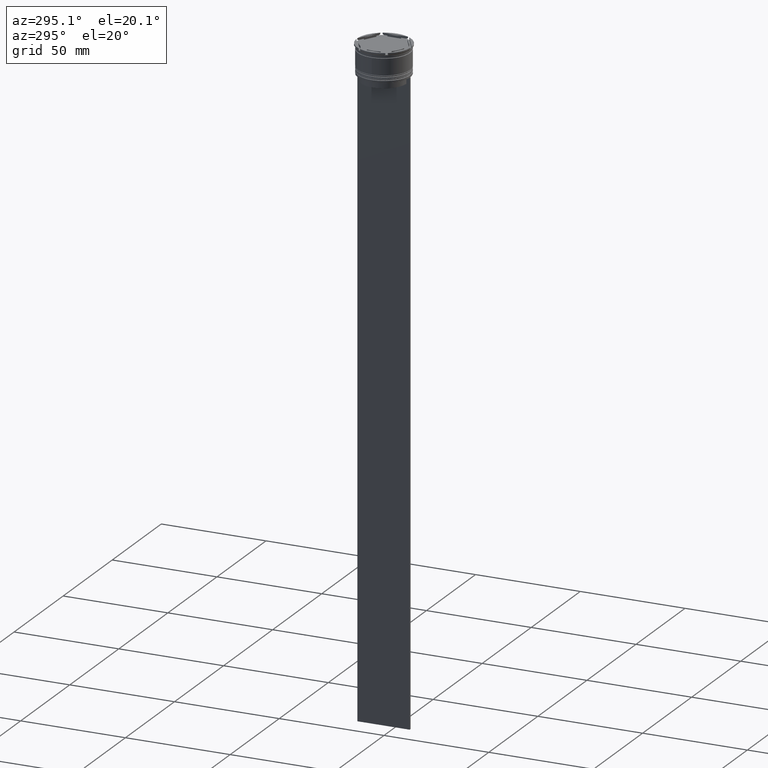
[diagram: clean part render]
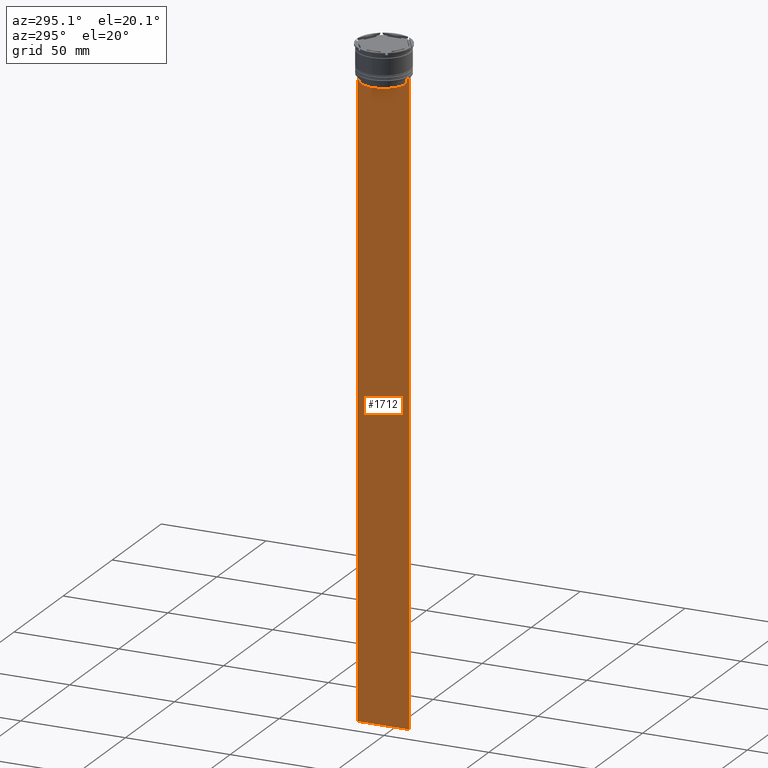
[diagram: same view with one face highlighted and labeled with its STEP entity id]
A machine part, auxiliary view. The second image highlights one B-rep face of the part: STEP entity #1712.
In plain terms, the highlighted planar face has unit normal (-1, 0, 0).
Its self-contained STEP definition (entity closure, byte-faithful):
#1 = CARTESIAN_POINT ( 'NONE',  ( -0.5000000000000000000, -11.22219891450652973, -14.16667035398018903 ) ) ;
#7 = EDGE_CURVE ( 'NONE', #1048, #511, #2451, .T. ) ;
#80 = EDGE_CURVE ( 'NONE', #1990, #1506, #217, .T. ) ;
#87 = ORIENTED_EDGE ( 'NONE', *, *, #2784, .F. ) ;
#91 = B_SPLINE_CURVE_WITH_KNOTS ( 'NONE', 3,
 ( #1746, #1997, #1, #894 ),
 .UNSPECIFIED., .F., .F.,
 ( 4, 4 ),
 ( 0.05041323384703226551, 0.05112713601261605068 ),
 .UNSPECIFIED. ) ;
#185 = DIRECTION ( 'NONE',  ( 0.000000000000000000, -1.000000000000000000, 0.000000000000000000 ) ) ;
#217 = LINE ( 'NONE', #1345, #2138 ) ;
#252 = VECTOR ( 'NONE', #260, 1000.000000000000000 ) ;
#260 = DIRECTION ( 'NONE',  ( 0.000000000000000000, 1.000000000000000000, 0.000000000000000000 ) ) ;
#314 = CARTESIAN_POINT ( 'NONE',  ( -0.5000000000000000000, 12.50000000000000711, -314.0000000000000000 ) ) ;
#345 = DIRECTION ( 'NONE',  ( 0.000000000000000000, -1.000000000000000000, 0.000000000000000000 ) ) ;
#366 = ORIENTED_EDGE ( 'NONE', *, *, #1860, .F. ) ;
#418 = CARTESIAN_POINT ( 'NONE',  ( -0.5000000000000000000, -12.49999999999999289, -314.0000000000000000 ) ) ;
#443 = CARTESIAN_POINT ( 'NONE',  ( -0.5000000000000000000, -12.49999999999999289, -14.00000000000000178 ) ) ;
#486 = VECTOR ( 'NONE', #1929, 1000.000000000000000 ) ;
#505 = LINE ( 'NONE', #2544, #1923 ) ;
#511 = VERTEX_POINT ( 'NONE', #2872 ) ;
#531 = EDGE_CURVE ( 'NONE', #1907, #2067, #2213, .T. ) ;
#541 = CARTESIAN_POINT ( 'NONE',  ( -0.5000000000000000000, -12.49999999999999289, -14.00000000000000178 ) ) ;
#542 = VECTOR ( 'NONE', #1589, 1000.000000000000000 ) ;
#638 = EDGE_CURVE ( 'NONE', #511, #1614, #91, .T. ) ;
#657 = CARTESIAN_POINT ( 'NONE',  ( -0.5000000000000000000, 10.88852607105296144, -17.00000000000000000 ) ) ;
#740 = DIRECTION ( 'NONE',  ( 0.000000000000000000, 0.000000000000000000, -1.000000000000000000 ) ) ;
#772 = CARTESIAN_POINT ( 'NONE',  ( -0.5000000000000000000, 11.38902980942626719, -14.00000000000000178 ) ) ;
#781 = CARTESIAN_POINT ( 'NONE',  ( -0.5000000000000000000, 10.88852607105296322, -14.50000000000000000 ) ) ;
#793 = DIRECTION ( 'NONE',  ( 0.000000000000000000, 0.000000000000000000, -1.000000000000000000 ) ) ;
#797 = EDGE_LOOP ( 'NONE', ( #366, #2456, #2115, #2085, #1291, #1593, #1527, #87, #2274, #2585, #1002, #2781 ) ) ;
#808 = VERTEX_POINT ( 'NONE', #657 ) ;
#812 = LINE ( 'NONE', #1678, #1263 ) ;
#824 = CARTESIAN_POINT ( 'NONE',  ( -0.5000000000000000000, 11.05536450345590538, -14.33333719074559376 ) ) ;
#871 = CARTESIAN_POINT ( 'NONE',  ( -0.5000000000000000000, -12.49999999999999289, -14.00000000000000178 ) ) ;
#894 = CARTESIAN_POINT ( 'NONE',  ( -0.5000000000000000000, -11.38902980942626719, -14.00000000000000178 ) ) ;
#899 = VECTOR ( 'NONE', #2736, 1000.000000000000000 ) ;
#961 = EDGE_CURVE ( 'NONE', #808, #1048, #1389, .T. ) ;
#974 = FACE_OUTER_BOUND ( 'NONE', #797, .T. ) ;
#976 = EDGE_CURVE ( 'NONE', #1506, #1358, #1848, .T. ) ;
#1002 = ORIENTED_EDGE ( 'NONE', *, *, #961, .F. ) ;
#1045 = CARTESIAN_POINT ( 'NONE',  ( -0.5000000000000000000, 12.50000000000000711, 11.01999200639360765 ) ) ;
#1048 = VERTEX_POINT ( 'NONE', #2343 ) ;
#1058 = LINE ( 'NONE', #2118, #2718 ) ;
#1104 = CARTESIAN_POINT ( 'NONE',  ( -0.5000000000000000000, -12.49999999999999289, -314.0000000000000000 ) ) ;
#1111 = CARTESIAN_POINT ( 'NONE',  ( -0.5000000000000000000, 12.50000000000000711, -14.00000000000000178 ) ) ;
#1156 = DIRECTION ( 'NONE',  ( -1.000000000000000000, 0.000000000000000000, 0.000000000000000000 ) ) ;
#1188 = CARTESIAN_POINT ( 'NONE',  ( -0.5000000000000000000, 10.90000000000000213, -17.00000000000000000 ) ) ;
#1250 = CARTESIAN_POINT ( 'NONE',  ( -0.5000000000000000000, -12.38991525394746773, -14.00000000000000178 ) ) ;
#1263 = VECTOR ( 'NONE', #345, 1000.000000000000000 ) ;
#1291 = ORIENTED_EDGE ( 'NONE', *, *, #2455, .F. ) ;
#1329 = LINE ( 'NONE', #1104, #252 ) ;
#1345 = CARTESIAN_POINT ( 'NONE',  ( -0.5000000000000000000, -12.49999999999999289, -14.00000000000000178 ) ) ;
#1358 = VERTEX_POINT ( 'NONE', #772 ) ;
#1389 = LINE ( 'NONE', #1188, #2243 ) ;
#1506 = VERTEX_POINT ( 'NONE', #2149 ) ;
#1527 = ORIENTED_EDGE ( 'NONE', *, *, #531, .F. ) ;
#1539 = AXIS2_PLACEMENT_3D ( 'NONE', #2511, #1156, #2488 ) ;
#1589 = DIRECTION ( 'NONE',  ( -0.000000000000000000, -0.000000000000000000, 1.000000000000000000 ) ) ;
#1593 = ORIENTED_EDGE ( 'NONE', *, *, #2645, .F. ) ;
#1614 = VERTEX_POINT ( 'NONE', #2443 ) ;
#1634 = VECTOR ( 'NONE', #185, 1000.000000000000000 ) ;
#1671 = VERTEX_POINT ( 'NONE', #2852 ) ;
#1678 = CARTESIAN_POINT ( 'NONE',  ( -0.5000000000000000000, -12.49999999999999289, -14.00000000000000178 ) ) ;
#1712 = ADVANCED_FACE ( 'NONE', ( #974 ), #2498, .T. ) ;
#1746 = CARTESIAN_POINT ( 'NONE',  ( -0.5000000000000000000, -10.88852607105296322, -14.50000000000000000 ) ) ;
#1813 = CARTESIAN_POINT ( 'NONE',  ( -0.5000000000000000000, -10.88852607105296322, 0.000000000000000000 ) ) ;
#1848 = LINE ( 'NONE', #541, #899 ) ;
#1860 = EDGE_CURVE ( 'NONE', #1358, #1671, #2311, .T. ) ;
#1874 = CARTESIAN_POINT ( 'NONE',  ( -0.5000000000000000000, 11.38902980942626719, -14.00000000000000178 ) ) ;
#1907 = VERTEX_POINT ( 'NONE', #1250 ) ;
#1923 = VECTOR ( 'NONE', #740, 1000.000000000000000 ) ;
#1929 = DIRECTION ( 'NONE',  ( 0.000000000000000000, 0.000000000000000000, -1.000000000000000000 ) ) ;
#1990 = VERTEX_POINT ( 'NONE', #1111 ) ;
#1997 = CARTESIAN_POINT ( 'NONE',  ( -0.5000000000000000000, -11.05536450423839234, -14.33333718996393102 ) ) ;
#2067 = VERTEX_POINT ( 'NONE', #871 ) ;
#2079 = DIRECTION ( 'NONE',  ( 0.000000000000000000, -1.000000000000000000, 0.000000000000000000 ) ) ;
#2085 = ORIENTED_EDGE ( 'NONE', *, *, #2800, .T. ) ;
#2115 = ORIENTED_EDGE ( 'NONE', *, *, #80, .F. ) ;
#2118 = CARTESIAN_POINT ( 'NONE',  ( -0.5000000000000000000, 10.88852607105296322, 0.000000000000000000 ) ) ;
#2128 = CARTESIAN_POINT ( 'NONE',  ( -0.5000000000000000000, 11.22219891375843304, -14.16667035472756808 ) ) ;
#2138 = VECTOR ( 'NONE', #2460, 1000.000000000000000 ) ;
#2149 = CARTESIAN_POINT ( 'NONE',  ( -0.5000000000000000000, 12.38991525394746773, -14.00000000000000178 ) ) ;
#2213 = LINE ( 'NONE', #443, #1634 ) ;
#2243 = VECTOR ( 'NONE', #2079, 1000.000000000000000 ) ;
#2274 = ORIENTED_EDGE ( 'NONE', *, *, #638, .F. ) ;
#2311 = B_SPLINE_CURVE_WITH_KNOTS ( 'NONE', 3,
 ( #1874, #2128, #824, #781 ),
 .UNSPECIFIED., .F., .F.,
 ( 4, 4 ),
 ( 0.01935560801904634073, 0.02006307108468586772 ),
 .UNSPECIFIED. ) ;
#2343 = CARTESIAN_POINT ( 'NONE',  ( -0.5000000000000000000, -10.88852607105296144, -17.00000000000000000 ) ) ;
#2400 = VERTEX_POINT ( 'NONE', #418 ) ;
#2443 = CARTESIAN_POINT ( 'NONE',  ( -0.5000000000000000000, -11.38902980942626719, -14.00000000000000178 ) ) ;
#2451 = LINE ( 'NONE', #1813, #542 ) ;
#2455 = EDGE_CURVE ( 'NONE', #2400, #2595, #1329, .T. ) ;
#2456 = ORIENTED_EDGE ( 'NONE', *, *, #976, .F. ) ;
#2460 = DIRECTION ( 'NONE',  ( 0.000000000000000000, -1.000000000000000000, 0.000000000000000000 ) ) ;
#2488 = DIRECTION ( 'NONE',  ( 0.000000000000000000, 0.000000000000000000, 1.000000000000000000 ) ) ;
#2498 = PLANE ( 'NONE',  #1539 ) ;
#2511 = CARTESIAN_POINT ( 'NONE',  ( -0.5000000000000000000, -12.49999999999999289, 11.01999200639360765 ) ) ;
#2544 = CARTESIAN_POINT ( 'NONE',  ( -0.5000000000000000000, -12.49999999999999289, 11.01999200639360765 ) ) ;
#2584 = LINE ( 'NONE', #1045, #486 ) ;
#2585 = ORIENTED_EDGE ( 'NONE', *, *, #7, .F. ) ;
#2595 = VERTEX_POINT ( 'NONE', #314 ) ;
#2645 = EDGE_CURVE ( 'NONE', #2067, #2400, #505, .T. ) ;
#2718 = VECTOR ( 'NONE', #793, 1000.000000000000000 ) ;
#2736 = DIRECTION ( 'NONE',  ( 0.000000000000000000, -1.000000000000000000, 0.000000000000000000 ) ) ;
#2747 = EDGE_CURVE ( 'NONE', #1671, #808, #1058, .T. ) ;
#2781 = ORIENTED_EDGE ( 'NONE', *, *, #2747, .F. ) ;
#2784 = EDGE_CURVE ( 'NONE', #1614, #1907, #812, .T. ) ;
#2800 = EDGE_CURVE ( 'NONE', #1990, #2595, #2584, .T. ) ;
#2852 = CARTESIAN_POINT ( 'NONE',  ( -0.5000000000000000000, 10.88852607105296322, -14.50000000000000000 ) ) ;
#2872 = CARTESIAN_POINT ( 'NONE',  ( -0.5000000000000000000, -10.88852607105296322, -14.50000000000000000 ) ) ;